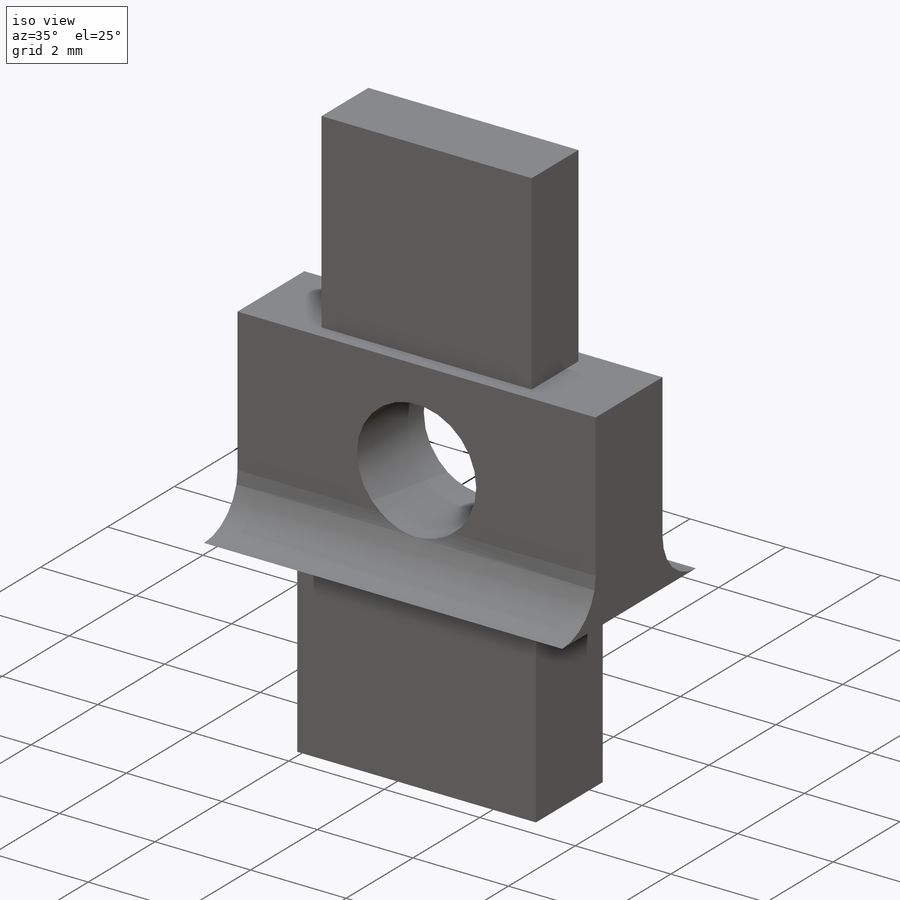
[diagram: iso view]
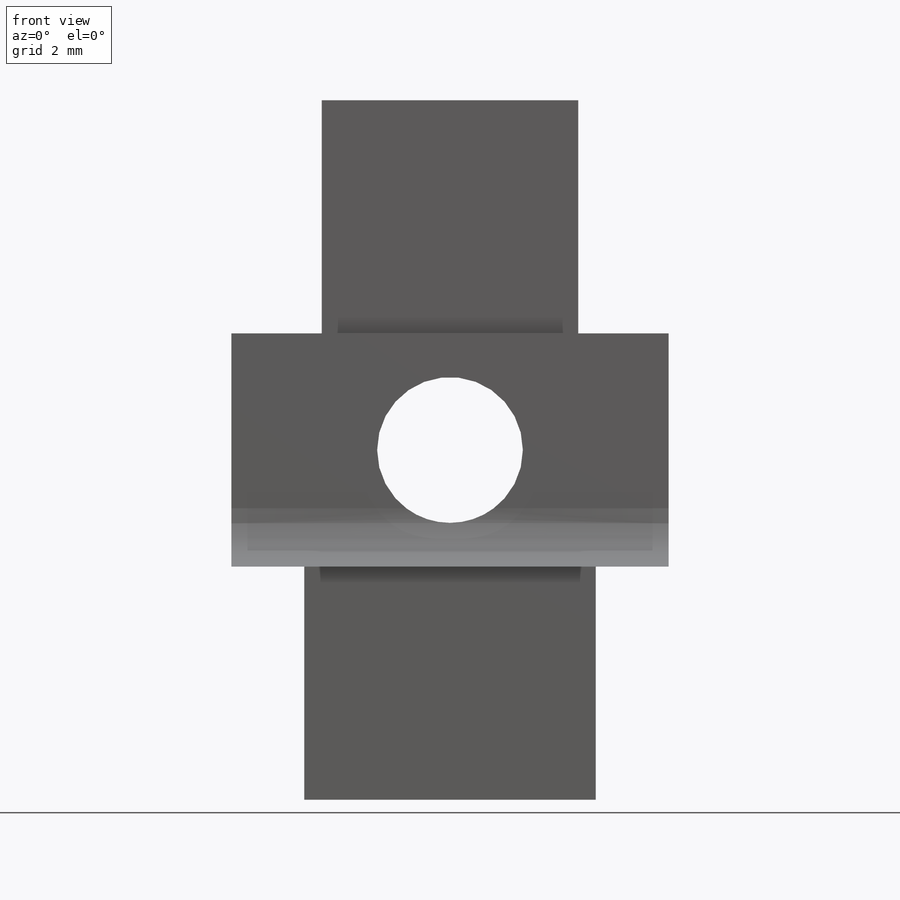
[diagram: front view]
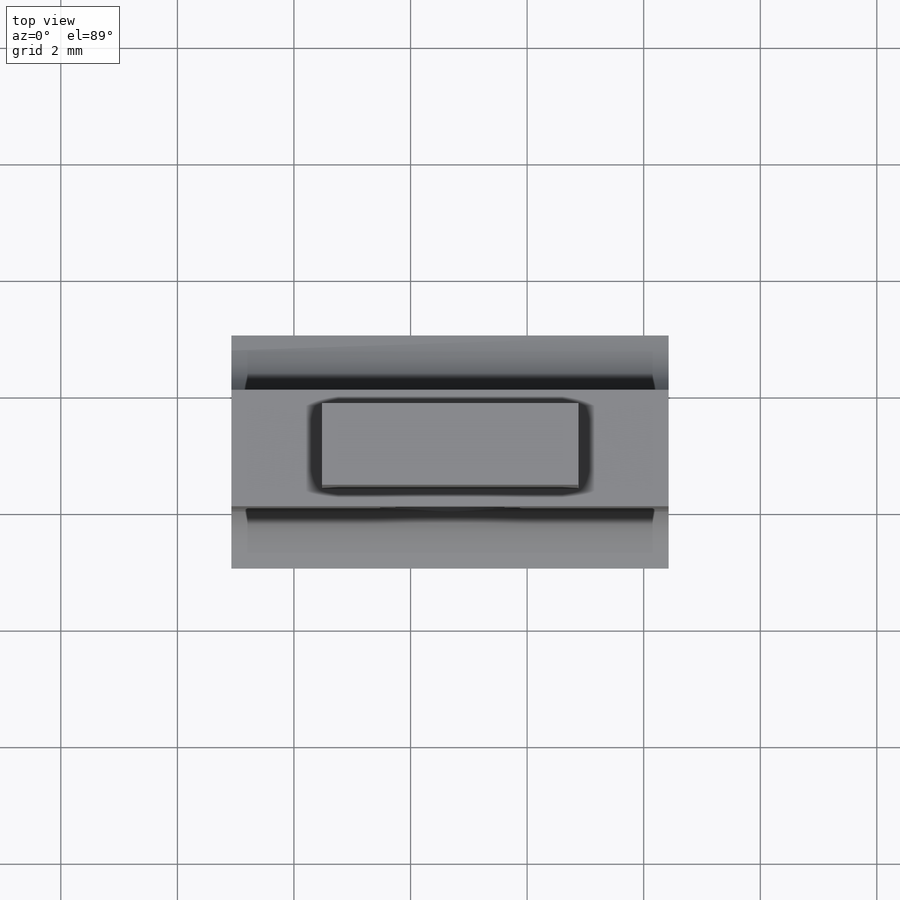
[diagram: top view]
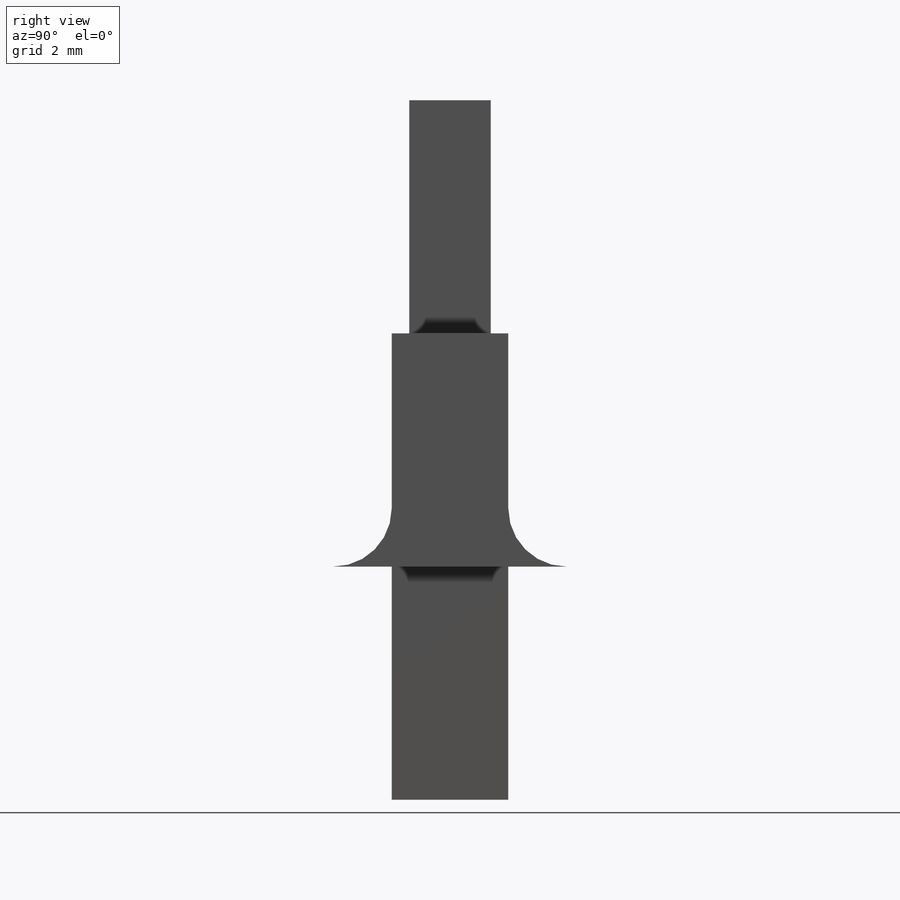
[diagram: right view]
SOLIDWORKS PART (.sldprt)
format: sldprt  version: not decoded by parser v0  size: 303,104 bytes
history: native  units: mm
features: sketch x4, extrude x2, cut_extrude x2, material x1 (+13 scaffold rows collapsed)
feature tree (22):
  scaffold x13  (default folders/planes/origin — collapsed)
  material  "Material <not specified>"
  sketch  "Sketch1"  dims[c1.D1=4.0mm c1.D2=~1950.926809mm c1.D3=~1952.176809mm c1.D4=~1954.676809mm c1.D5=~1957.176809mm c1.D6=~1958.426809mm c2.D2=~1950.926809mm c2.D3=~1954.676809mm c2.D4=~1957.176809mm c2.D5=~1454.884116mm c2.D6=~1458.884116mm c2.D7=~1460.884116mm c2.D8=~1462.884116mm c2.D9=~1466.884116mm c3.D5=~1454.884116mm c3.D6=~1458.884116mm]
  extrude  "Boss-Extrude1"  Depth=2mm
  sketch  "Sketch2"  dims[D1=1.0mm D2=1.0mm D3=4.0mm D4=1.0mm D5=4.0mm D6=2.0mm]
  extrude  "Boss-Extrude2"  [1 undecoded]
  sketch  "Sketch3"  dims[D1=2.5mm]
  cut_extrude  "Cut-Extrude1"  Depth=10mm
  sketch  "Sketch4"  dims[D1=0.3mm D2=0.3mm D3=0.3mm D4=0.3mm]
  cut_extrude  "Cut-Extrude2"  Depth=4mm
decode coverage: 7 of 8 modeling features carry decoded parameters
note: ~ marks probable driven/reference dimensions
note: 1 parameter value undecoded
note: suppression state not decoded; provenance and decode notes live in map.json
